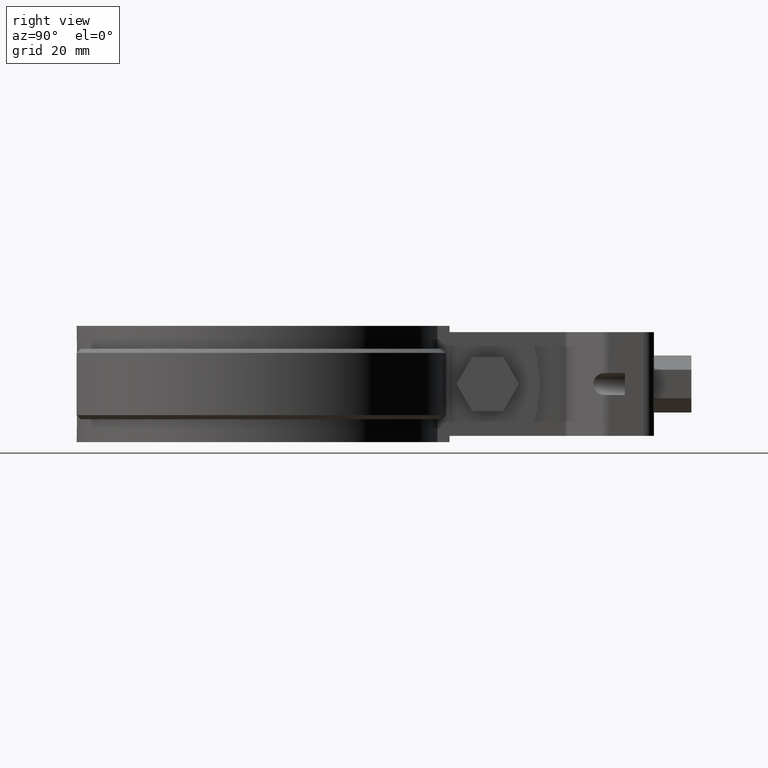
[diagram: clean part render]
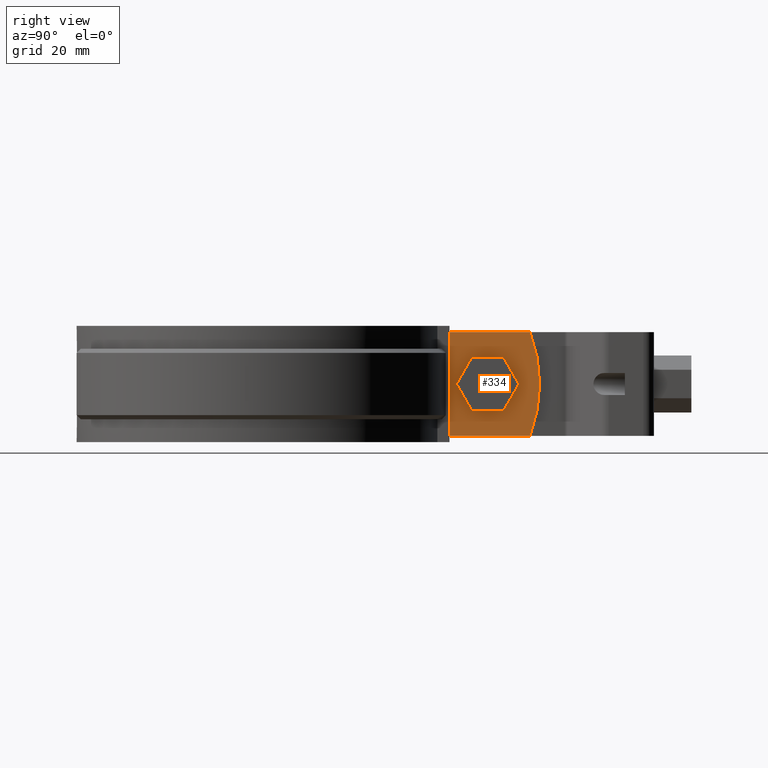
[diagram: same view with one face highlighted and labeled with its STEP entity id]
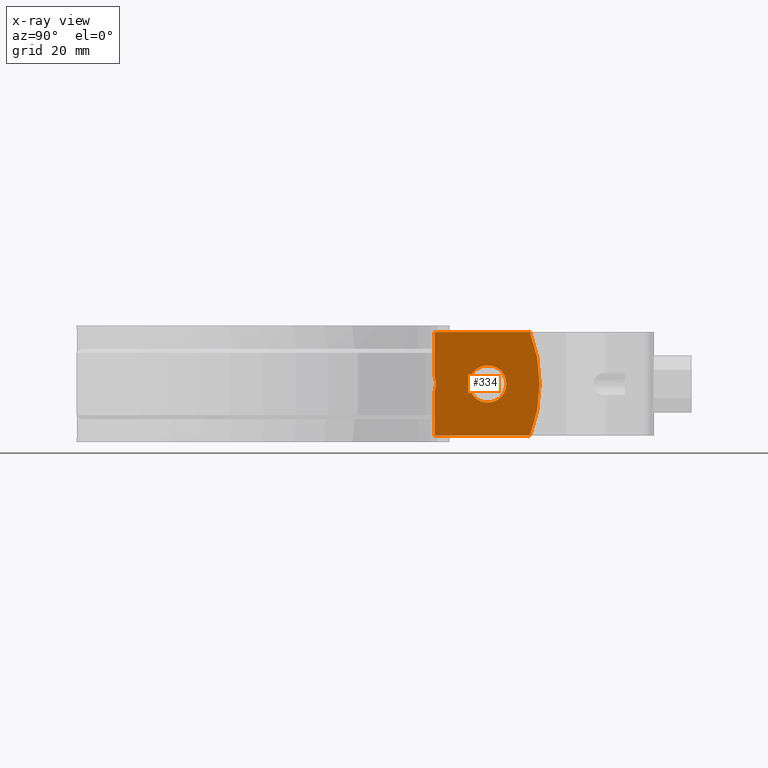
[diagram: x-ray of the same camera — body ghosted, the highlighted face saturated]
A machine part, right view. The second image highlights one B-rep face of the part: STEP entity #334.
The next image is the same camera in x-ray: the body ghosted, the highlighted face saturated — about 0% of this face is hidden behind the body in this view.
In plain terms, the highlighted planar face has unit normal (1, 0, 0).
Its self-contained STEP definition (entity closure, byte-faithful):
#334 = ADVANCED_FACE( '', ( #568, #569 ), #570, .T. );
#568 = FACE_OUTER_BOUND( '', #1152, .T. );
#569 = FACE_BOUND( '', #1153, .T. );
#570 = PLANE( '', #1154 );
#1152 = EDGE_LOOP( '', ( #2253, #2254, #2255, #2256, #2257, #2258 ) );
#1153 = EDGE_LOOP( '', ( #2259 ) );
#1154 = AXIS2_PLACEMENT_3D( '', #2260, #2261, #2262 );
#2253 = ORIENTED_EDGE( '', *, *, #4358, .F. );
#2254 = ORIENTED_EDGE( '', *, *, #4359, .F. );
#2255 = ORIENTED_EDGE( '', *, *, #4360, .T. );
#2256 = ORIENTED_EDGE( '', *, *, #4361, .T. );
#2257 = ORIENTED_EDGE( '', *, *, #4362, .F. );
#2258 = ORIENTED_EDGE( '', *, *, #4343, .F. );
#2259 = ORIENTED_EDGE( '', *, *, #4363, .T. );
#2260 = CARTESIAN_POINT( '', ( 5.00000000000000, 42.5784276365391, -12.5000000000000 ) );
#2261 = DIRECTION( '', ( 1.00000000000000, 6.16283340149655E-017, 0.000000000000000 ) );
#2262 = DIRECTION( '', ( 6.16283340149655E-017, -1.00000000000000, 0.000000000000000 ) );
#4343 = EDGE_CURVE( '', #4989, #4991, #4992, .T. );
#4358 = EDGE_CURVE( '', #5006, #4989, #5008, .T. );
#4359 = EDGE_CURVE( '', #5009, #5006, #5010, .T. );
#4360 = EDGE_CURVE( '', #5009, #5011, #5012, .T. );
#4361 = EDGE_CURVE( '', #5011, #5013, #5014, .T. );
#4362 = EDGE_CURVE( '', #4991, #5013, #5015, .T. );
#4363 = EDGE_CURVE( '', #5016, #5016, #5017, .F. );
#4989 = VERTEX_POINT( '', #6773 );
#4991 = VERTEX_POINT( '', #6790 );
#4992 = LINE( '', #6791, #6792 );
#5006 = VERTEX_POINT( '', #6881 );
#5008 = B_SPLINE_CURVE_WITH_KNOTS( '', 3, ( #6896, #6897, #6898, #6899, #6900, #6901, #6902, #6903 ), .UNSPECIFIED., .F., .F., ( 4, 2, 2, 4 ), ( 0.000000000000000, 0.00180710444006215, 0.00271065666009323, 0.00361420888012430 ), .UNSPECIFIED. );
#5009 = VERTEX_POINT( '', #6904 );
#5010 = LINE( '', #6905, #6906 );
#5011 = VERTEX_POINT( '', #6907 );
#5012 = LINE( '', #6908, #6909 );
#5013 = VERTEX_POINT( '', #6910 );
#5014 = CIRCLE( '', #6911, 35.0000000000000 );
#5015 = LINE( '', #6912, #6913 );
#5016 = VERTEX_POINT( '', #6914 );
#5017 = CIRCLE( '', #6915, 4.50000000000000 );
#6773 = CARTESIAN_POINT( '', ( 5.00000000000000, 42.5784276365391, 1.78972355179529 ) );
#6790 = CARTESIAN_POINT( '', ( 5.00000000000000, 42.5784276365391, 12.5000000000000 ) );
#6791 = CARTESIAN_POINT( '', ( 5.00000000000000, 42.5784276365391, -12.5000000000000 ) );
#6792 = VECTOR( '', #8908, 1000.00000000000 );
#6881 = CARTESIAN_POINT( '', ( 5.00000000000000, 42.5784276365391, -1.78972355179727 ) );
#6896 = CARTESIAN_POINT( '', ( 5.00000000000000, 42.5784276365391, -1.78972355179727 ) );
#6897 = CARTESIAN_POINT( '', ( 5.00000000000001, 42.7623800124426, -1.20728077000659 ) );
#6898 = CARTESIAN_POINT( '', ( 5.00000000000000, 42.8570859072648, -0.612302021116593 ) );
#6899 = CARTESIAN_POINT( '', ( 5.00000000000000, 42.8577379650877, 0.300028743025238 ) );
#6900 = CARTESIAN_POINT( '', ( 5.00000000000000, 42.8334702706240, 0.605077647066499 ) );
#6901 = CARTESIAN_POINT( '', ( 5.00000000000000, 42.7398033305823, 1.20320374920509 ) );
#6902 = CARTESIAN_POINT( '', ( 4.99999999999999, 42.6704348396632, 1.49840395850847 ) );
#6903 = CARTESIAN_POINT( '', ( 5.00000000000000, 42.5784276365392, 1.78972355179529 ) );
#6904 = CARTESIAN_POINT( '', ( 5.00000000000000, 42.5784276365391, -12.5000000000000 ) );
#6905 = CARTESIAN_POINT( '', ( 5.00000000000000, 42.5784276365391, -12.5000000000000 ) );
#6906 = VECTOR( '', #8921, 1000.00000000000 );
#6907 = CARTESIAN_POINT( '', ( 5.00000000000000, 65.5368458222919, -12.5000000000000 ) );
#6908 = CARTESIAN_POINT( '', ( 5.00000000000000, 42.5784276365391, -12.5000000000000 ) );
#6909 = VECTOR( '', #8922, 1000.00000000000 );
#6910 = CARTESIAN_POINT( '', ( 5.00000000000000, 65.5368458222919, 12.5000000000000 ) );
#6911 = AXIS2_PLACEMENT_3D( '', #8923, #8924, #8925 );
#6912 = CARTESIAN_POINT( '', ( 5.00000000000000, 42.5784276365391, 12.5000000000000 ) );
#6913 = VECTOR( '', #8926, 1000.00000000000 );
#6914 = CARTESIAN_POINT( '', ( 5.00000000000000, 59.8451037457368, -1.73472347597681E-015 ) );
#6915 = AXIS2_PLACEMENT_3D( '', #8927, #8928, #8929 );
#8908 = DIRECTION( '', ( 0.000000000000000, 0.000000000000000, 1.00000000000000 ) );
#8921 = DIRECTION( '', ( 0.000000000000000, 0.000000000000000, 1.00000000000000 ) );
#8922 = DIRECTION( '', ( -6.16283340149655E-017, 1.00000000000000, 0.000000000000000 ) );
#8923 = CARTESIAN_POINT( '', ( 5.00000000000000, 32.8451037457368, -2.77555756156289E-014 ) );
#8924 = DIRECTION( '', ( 1.00000000000000, 6.16283340149655E-017, 0.000000000000000 ) );
#8925 = DIRECTION( '', ( -6.16283340149655E-017, 1.00000000000000, 0.000000000000000 ) );
#8926 = DIRECTION( '', ( -6.16283340149655E-017, 1.00000000000000, 0.000000000000000 ) );
#8927 = CARTESIAN_POINT( '', ( 5.00000000000000, 55.3451037457368, -1.73472347597681E-015 ) );
#8928 = DIRECTION( '', ( 1.00000000000000, 6.16283340149655E-017, 0.000000000000000 ) );
#8929 = DIRECTION( '', ( -6.16283340149655E-017, 1.00000000000000, 0.000000000000000 ) );